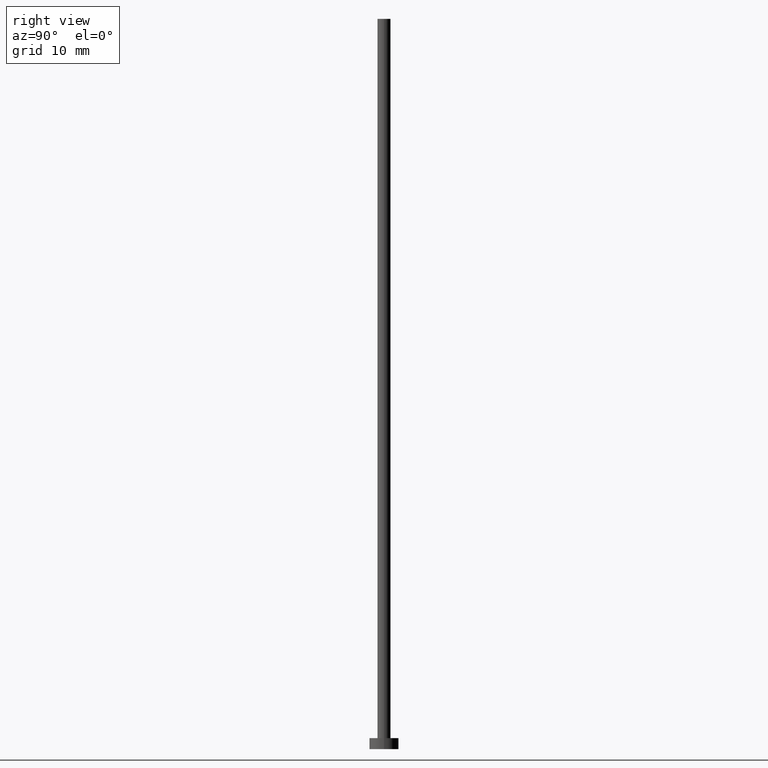
[diagram: clean part render]
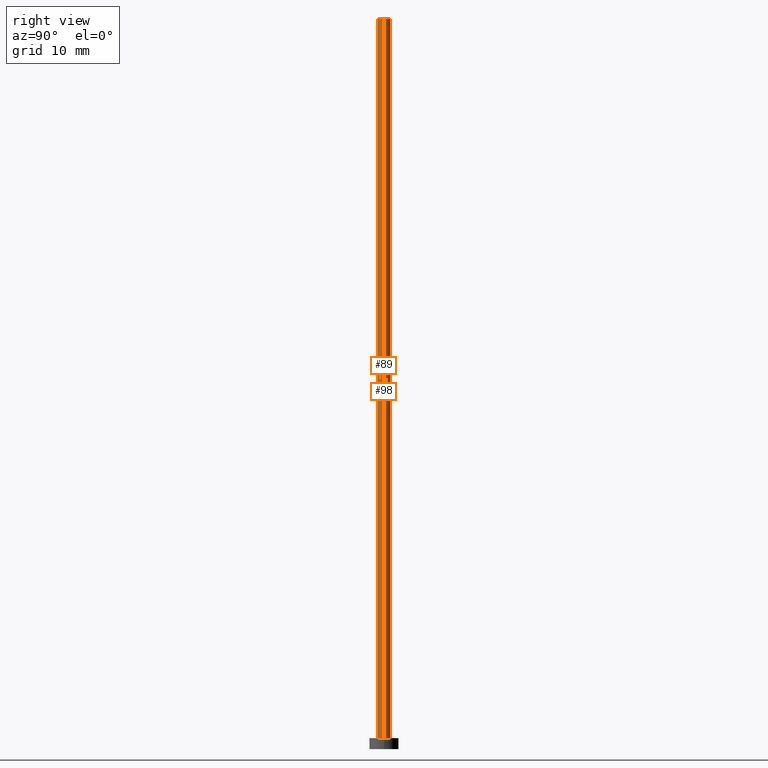
[diagram: same view with one multi-face feature highlighted, each face labeled with its STEP entity id]
A machine part, right view. The highlighted faces form ONE feature: a constant-radius fillet chain: 2 tangent blend faces with common blend radius 0.9 mm. The faces share edges in the B-rep.
Their STEP definitions:
[1] entity #98 (Cylinder):
#17 = DIRECTION ( 'NONE',  ( -0.000000000000000000, -0.000000000000000000, -1.000000000000000000 ) ) ;
#20 = LINE ( 'NONE', #133, #53 ) ;
#30 = DIRECTION ( 'NONE',  ( -0.000000000000000000, -0.000000000000000000, -1.000000000000000000 ) ) ;
#31 = CARTESIAN_POINT ( 'NONE',  ( 0.000000000000000000, 0.000000000000000000, 100.0000000000000000 ) ) ;
#32 = CIRCLE ( 'NONE', #252, 0.9000000000000000222 ) ;
#50 = ORIENTED_EDGE ( 'NONE', *, *, #183, .F. ) ;
#53 = VECTOR ( 'NONE', #112, 1000.000000000000000 ) ;
#62 = CIRCLE ( 'NONE', #92, 0.9000000000000000222 ) ;
#68 = CARTESIAN_POINT ( 'NONE',  ( -0.9000000000000000222, 0.000000000000000000, 100.0000000000000000 ) ) ;
#69 = AXIS2_PLACEMENT_3D ( 'NONE', #214, #17, #88 ) ;
#70 = EDGE_CURVE ( 'NONE', #185, #162, #84, .T. ) ;
#79 = EDGE_CURVE ( 'NONE', #162, #182, #62, .T. ) ;
#84 = LINE ( 'NONE', #111, #91 ) ;
#88 = DIRECTION ( 'NONE',  ( -1.000000000000000000, 0.000000000000000000, 0.000000000000000000 ) ) ;
#91 = VECTOR ( 'NONE', #30, 1000.000000000000000 ) ;
#92 = AXIS2_PLACEMENT_3D ( 'NONE', #128, #166, #253 ) ;
#98 = ADVANCED_FACE ( 'NONE', ( #148 ), #171, .T. ) ;
#104 = EDGE_LOOP ( 'NONE', ( #242, #208, #144, #50 ) ) ;
#111 = CARTESIAN_POINT ( 'NONE',  ( 0.9000000000000000222, 1.102182119232617788E-16, 100.0000000000000000 ) ) ;
#112 = DIRECTION ( 'NONE',  ( -0.000000000000000000, -0.000000000000000000, -1.000000000000000000 ) ) ;
#115 = DIRECTION ( 'NONE',  ( 0.000000000000000000, 0.000000000000000000, 1.000000000000000000 ) ) ;
#128 = CARTESIAN_POINT ( 'NONE',  ( 0.000000000000000000, 0.000000000000000000, 1.500000000000000000 ) ) ;
#133 = CARTESIAN_POINT ( 'NONE',  ( -0.9000000000000000222, 0.000000000000000000, 100.0000000000000000 ) ) ;
#144 = ORIENTED_EDGE ( 'NONE', *, *, #79, .T. ) ;
#148 = FACE_OUTER_BOUND ( 'NONE', #104, .T. ) ;
#156 = CARTESIAN_POINT ( 'NONE',  ( 0.9000000000000000222, 1.102182119232617788E-16, 100.0000000000000000 ) ) ;
#162 = VERTEX_POINT ( 'NONE', #216 ) ;
#166 = DIRECTION ( 'NONE',  ( 0.000000000000000000, 0.000000000000000000, 1.000000000000000000 ) ) ;
#171 = CYLINDRICAL_SURFACE ( 'NONE', #69, 0.9000000000000000222 ) ;
#177 = CARTESIAN_POINT ( 'NONE',  ( -0.9000000000000000222, 0.000000000000000000, 1.500000000000000000 ) ) ;
#182 = VERTEX_POINT ( 'NONE', #177 ) ;
#183 = EDGE_CURVE ( 'NONE', #226, #182, #20, .T. ) ;
#185 = VERTEX_POINT ( 'NONE', #156 ) ;
#201 = EDGE_CURVE ( 'NONE', #185, #226, #32, .T. ) ;
#208 = ORIENTED_EDGE ( 'NONE', *, *, #70, .T. ) ;
#214 = CARTESIAN_POINT ( 'NONE',  ( 0.000000000000000000, 0.000000000000000000, 100.0000000000000000 ) ) ;
#216 = CARTESIAN_POINT ( 'NONE',  ( 0.9000000000000000222, 1.102182119232617788E-16, 1.500000000000000000 ) ) ;
#226 = VERTEX_POINT ( 'NONE', #68 ) ;
#242 = ORIENTED_EDGE ( 'NONE', *, *, #201, .F. ) ;
#252 = AXIS2_PLACEMENT_3D ( 'NONE', #31, #115, #255 ) ;
#253 = DIRECTION ( 'NONE',  ( 1.000000000000000000, 0.000000000000000000, 0.000000000000000000 ) ) ;
#255 = DIRECTION ( 'NONE',  ( 1.000000000000000000, 0.000000000000000000, 0.000000000000000000 ) ) ;
[2] entity #89 (Cylinder):
#11 = AXIS2_PLACEMENT_3D ( 'NONE', #43, #28, #130 ) ;
#18 = DIRECTION ( 'NONE',  ( 0.000000000000000000, 0.000000000000000000, 1.000000000000000000 ) ) ;
#20 = LINE ( 'NONE', #133, #53 ) ;
#21 = DIRECTION ( 'NONE',  ( 1.000000000000000000, 0.000000000000000000, 0.000000000000000000 ) ) ;
#28 = DIRECTION ( 'NONE',  ( -0.000000000000000000, -0.000000000000000000, -1.000000000000000000 ) ) ;
#30 = DIRECTION ( 'NONE',  ( -0.000000000000000000, -0.000000000000000000, -1.000000000000000000 ) ) ;
#36 = ORIENTED_EDGE ( 'NONE', *, *, #219, .F. ) ;
#43 = CARTESIAN_POINT ( 'NONE',  ( 0.000000000000000000, 0.000000000000000000, 100.0000000000000000 ) ) ;
#47 = CARTESIAN_POINT ( 'NONE',  ( 0.000000000000000000, 0.000000000000000000, 1.500000000000000000 ) ) ;
#48 = CARTESIAN_POINT ( 'NONE',  ( 0.000000000000000000, 0.000000000000000000, 100.0000000000000000 ) ) ;
#53 = VECTOR ( 'NONE', #112, 1000.000000000000000 ) ;
#64 = CYLINDRICAL_SURFACE ( 'NONE', #11, 0.9000000000000000222 ) ;
#65 = FACE_OUTER_BOUND ( 'NONE', #74, .T. ) ;
#68 = CARTESIAN_POINT ( 'NONE',  ( -0.9000000000000000222, 0.000000000000000000, 100.0000000000000000 ) ) ;
#70 = EDGE_CURVE ( 'NONE', #185, #162, #84, .T. ) ;
#73 = ORIENTED_EDGE ( 'NONE', *, *, #183, .T. ) ;
#74 = EDGE_LOOP ( 'NONE', ( #165, #36, #73, #101 ) ) ;
#84 = LINE ( 'NONE', #111, #91 ) ;
#86 = CIRCLE ( 'NONE', #241, 0.9000000000000000222 ) ;
#89 = ADVANCED_FACE ( 'NONE', ( #65 ), #64, .T. ) ;
#91 = VECTOR ( 'NONE', #30, 1000.000000000000000 ) ;
#101 = ORIENTED_EDGE ( 'NONE', *, *, #231, .T. ) ;
#111 = CARTESIAN_POINT ( 'NONE',  ( 0.9000000000000000222, 1.102182119232617788E-16, 100.0000000000000000 ) ) ;
#112 = DIRECTION ( 'NONE',  ( -0.000000000000000000, -0.000000000000000000, -1.000000000000000000 ) ) ;
#130 = DIRECTION ( 'NONE',  ( -1.000000000000000000, 0.000000000000000000, 0.000000000000000000 ) ) ;
#133 = CARTESIAN_POINT ( 'NONE',  ( -0.9000000000000000222, 0.000000000000000000, 100.0000000000000000 ) ) ;
#156 = CARTESIAN_POINT ( 'NONE',  ( 0.9000000000000000222, 1.102182119232617788E-16, 100.0000000000000000 ) ) ;
#162 = VERTEX_POINT ( 'NONE', #216 ) ;
#165 = ORIENTED_EDGE ( 'NONE', *, *, #70, .F. ) ;
#173 = DIRECTION ( 'NONE',  ( 1.000000000000000000, 0.000000000000000000, 0.000000000000000000 ) ) ;
#177 = CARTESIAN_POINT ( 'NONE',  ( -0.9000000000000000222, 0.000000000000000000, 1.500000000000000000 ) ) ;
#182 = VERTEX_POINT ( 'NONE', #177 ) ;
#183 = EDGE_CURVE ( 'NONE', #226, #182, #20, .T. ) ;
#185 = VERTEX_POINT ( 'NONE', #156 ) ;
#211 = AXIS2_PLACEMENT_3D ( 'NONE', #48, #18, #21 ) ;
#216 = CARTESIAN_POINT ( 'NONE',  ( 0.9000000000000000222, 1.102182119232617788E-16, 1.500000000000000000 ) ) ;
#218 = DIRECTION ( 'NONE',  ( 0.000000000000000000, 0.000000000000000000, 1.000000000000000000 ) ) ;
#219 = EDGE_CURVE ( 'NONE', #226, #185, #230, .T. ) ;
#226 = VERTEX_POINT ( 'NONE', #68 ) ;
#230 = CIRCLE ( 'NONE', #211, 0.9000000000000000222 ) ;
#231 = EDGE_CURVE ( 'NONE', #182, #162, #86, .T. ) ;
#241 = AXIS2_PLACEMENT_3D ( 'NONE', #47, #218, #173 ) ;